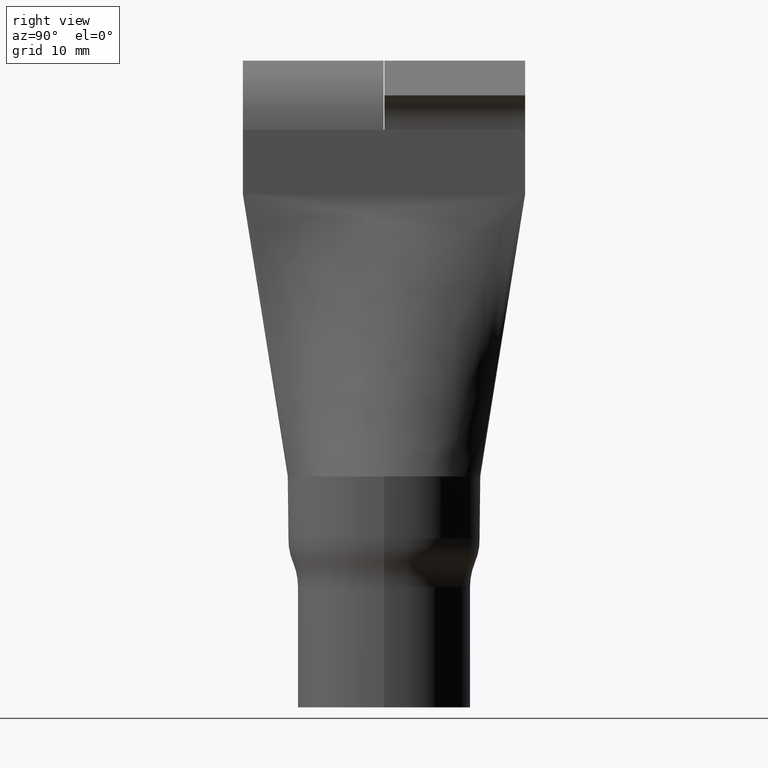
[diagram: clean part render]
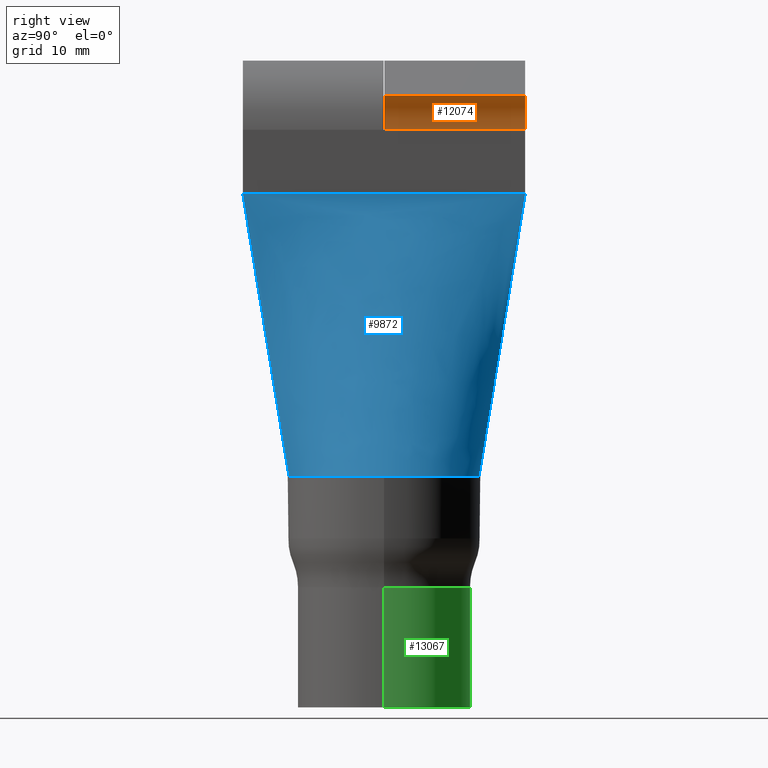
[diagram: same view with three faces highlighted in distinct colors, each labeled with its STEP entity id]
A machine part, right view with three faces highlighted in distinct colors.
Their STEP definitions:

[orange] entity #12074 — the highlighted cylindrical surface (partial cylindrical patch) has radius 6.9262 mm, axis along (-0, -1, -0).
#241 = AXIS2_PLACEMENT_3D ( 'NONE', #4854, #8548, #1378 ) ;
#254 = DIRECTION ( 'NONE',  ( -0.0000000000000000000, -1.000000000000000000, -0.0000000000000000000 ) ) ;
#303 = CARTESIAN_POINT ( 'NONE',  ( 10.42623355428751500, 22.00000000000000400, 90.00000000000000000 ) ) ;
#380 = AXIS2_PLACEMENT_3D ( 'NONE', #7104, #12976, #10600 ) ;
#1378 = DIRECTION ( 'NONE',  ( 0.0000000000000000000, 0.0000000000000000000, -1.000000000000000000 ) ) ;
#1719 = EDGE_CURVE ( 'NONE', #6644, #5269, #14447, .T. ) ;
#2174 = CARTESIAN_POINT ( 'NONE',  ( 6.037431940252191400, 0.05000000000000000300, 95.35827692837718000 ) ) ;
#2224 = AXIS2_PLACEMENT_3D ( 'NONE', #303, #254, #2721 ) ;
#2597 = VECTOR ( 'NONE', #15666, 1000.000000000000000 ) ;
#2721 = DIRECTION ( 'NONE',  ( 0.0000000000000000000, 0.0000000000000000000, -1.000000000000000000 ) ) ;
#2958 = VERTEX_POINT ( 'NONE', #3656 ) ;
#3656 = CARTESIAN_POINT ( 'NONE',  ( 6.037431940252191400, 22.00000000000000400, 95.35827692837718000 ) ) ;
#4854 = CARTESIAN_POINT ( 'NONE',  ( 10.42623355428751500, 0.04999999999999969700, 90.00000000000000000 ) ) ;
#5247 = CYLINDRICAL_SURFACE ( 'NONE', #380, 6.926233554287522400 ) ;
#5269 = VERTEX_POINT ( 'NONE', #6466 ) ;
#6466 = CARTESIAN_POINT ( 'NONE',  ( 3.500000000000000000, 0.05000000000000000300, 90.00000000000000000 ) ) ;
#6644 = VERTEX_POINT ( 'NONE', #2174 ) ;
#6734 = EDGE_LOOP ( 'NONE', ( #10125, #15003, #8685, #9099 ) ) ;
#7104 = CARTESIAN_POINT ( 'NONE',  ( 10.42623355428751500, 11.00000000000000200, 90.00000000000000000 ) ) ;
#7372 = DIRECTION ( 'NONE',  ( -9.856383386231860100E-017, -1.000000000000000000, 0.0000000000000000000 ) ) ;
#8548 = DIRECTION ( 'NONE',  ( -0.0000000000000000000, -1.000000000000000000, -0.0000000000000000000 ) ) ;
#8685 = ORIENTED_EDGE ( 'NONE', *, *, #1719, .T. ) ;
#8728 = CARTESIAN_POINT ( 'NONE',  ( 3.500000000000002200, 22.00000000000000400, 90.00000000000000000 ) ) ;
#9099 = ORIENTED_EDGE ( 'NONE', *, *, #12677, .F. ) ;
#9793 = LINE ( 'NONE', #14533, #2597 ) ;
#9985 = CIRCLE ( 'NONE', #2224, 6.926233554287522400 ) ;
#10125 = ORIENTED_EDGE ( 'NONE', *, *, #13723, .F. ) ;
#10600 = DIRECTION ( 'NONE',  ( 0.0000000000000000000, 0.0000000000000000000, -1.000000000000000000 ) ) ;
#10900 = CARTESIAN_POINT ( 'NONE',  ( 3.500000000000002200, 22.00000000000000400, 90.00000000000000000 ) ) ;
#12074 = ADVANCED_FACE ( 'NONE', ( #15463 ), #5247, .F. ) ;
#12677 = EDGE_CURVE ( 'NONE', #14401, #5269, #13606, .T. ) ;
#12976 = DIRECTION ( 'NONE',  ( -0.0000000000000000000, -1.000000000000000000, -0.0000000000000000000 ) ) ;
#13402 = VECTOR ( 'NONE', #7372, 1000.000000000000000 ) ;
#13606 = LINE ( 'NONE', #10900, #13402 ) ;
#13723 = EDGE_CURVE ( 'NONE', #2958, #14401, #9985, .T. ) ;
#14127 = EDGE_CURVE ( 'NONE', #6644, #2958, #9793, .T. ) ;
#14401 = VERTEX_POINT ( 'NONE', #8728 ) ;
#14447 = CIRCLE ( 'NONE', #241, 6.926233554287522400 ) ;
#14533 = CARTESIAN_POINT ( 'NONE',  ( 6.037431940252191400, -3.449734185181151600E-016, 95.35827692837718000 ) ) ;
#15003 = ORIENTED_EDGE ( 'NONE', *, *, #14127, .F. ) ;
#15463 = FACE_OUTER_BOUND ( 'NONE', #6734, .T. ) ;
#15666 = DIRECTION ( 'NONE',  ( 6.245488399285587600E-017, 1.000000000000000000, -7.625101186920512300E-017 ) ) ;

[blue] entity #9872 — the highlighted face is a freeform B-spline surface patch.
#9 = CARTESIAN_POINT ( 'NONE',  ( 3.452374059847578700, -14.68663407369927400, 80.50315780212317000 ) ) ;
#62 = CARTESIAN_POINT ( 'NONE',  ( 3.436598154235523100, -12.84291545996839000, 80.50315780212317000 ) ) ;
#319 = CARTESIAN_POINT ( 'NONE',  ( 3.393944052543095900, -7.326605744522327200, 80.50315780212317000 ) ) ;
#368 = CARTESIAN_POINT ( 'NONE',  ( 3.460345671636579900, -15.60938652023281400, 80.50315780212317000 ) ) ;
#423 = CARTESIAN_POINT ( 'NONE',  ( 14.54924469928874900, -4.200948314832973400, 35.55999999999998100 ) ) ;
#473 = CARTESIAN_POINT ( 'NONE',  ( 9.044346528793381500, 11.99539825577968900, 36.00000000000000700 ) ) ;
#507 = DIRECTION ( 'NONE',  ( 1.000000000000000000, 0.0000000000000000000, 0.0000000000000000000 ) ) ;
#532 = CARTESIAN_POINT ( 'NONE',  ( 9.099789994081316300, 11.98701890500415200, 35.56000000000000200 ) ) ;
#579 = CARTESIAN_POINT ( 'NONE',  ( 3.413891684207535500, 10.08193523136288600, 80.50315780212317000 ) ) ;
#629 = CARTESIAN_POINT ( 'NONE',  ( 3.388194115669525400, 6.409379246692124900, 80.50315780212317000 ) ) ;
#676 = CARTESIAN_POINT ( 'NONE',  ( 3.498829591700968900, 20.23058550342280200, 80.50315780212317000 ) ) ;
#960 = CARTESIAN_POINT ( 'NONE',  ( 2.356725731026973600, -14.81370459502670700, 36.00000000000000700 ) ) ;
#1104 = ORIENTED_EDGE ( 'NONE', *, *, #4358, .F. ) ;
#1242 = CARTESIAN_POINT ( 'NONE',  ( 9.044346528793378000, -11.99539825577968900, 36.00000000000000700 ) ) ;
#1293 = CARTESIAN_POINT ( 'NONE',  ( 3.506103103797866700, -21.15613804961288500, 80.50315780212318400 ) ) ;
#1306 = ORIENTED_EDGE ( 'NONE', *, *, #2094, .T. ) ;
#1311 = DIRECTION ( 'NONE',  ( -0.02563530597302266300, -0.1611362089732852600, -0.9865991857108880000 ) ) ;
#1553 = CARTESIAN_POINT ( 'NONE',  ( 15.00000000000000000, -1.066856216474177300, 36.00000000000000700 ) ) ;
#1606 = CARTESIAN_POINT ( 'NONE',  ( 3.499999999999999100, -12.83333333333330400, 79.99999999999998600 ) ) ;
#1660 = CARTESIAN_POINT ( 'NONE',  ( 3.406795068986805800, -9.162884368691500500, 80.50315780212317000 ) ) ;
#1706 = CARTESIAN_POINT ( 'NONE',  ( 3.452374059847581400, 14.68663407369933100, 80.50315780212317000 ) ) ;
#1751 = CARTESIAN_POINT ( 'NONE',  ( 9.726758827173377100, 11.45446083864483300, 36.00000000000000700 ) ) ;
#1770 = B_SPLINE_SURFACE_WITH_KNOTS ( 'NONE', 3, 1, ( 
 ( #9503, #3465, #10761, #2182 ),
 ( #4768, #2241, #13315, #10658 ),
 ( #15446, #14466, #7227, #14360 ),
 ( #2402, #960, #10867, #3411 ),
 ( #11862, #15500, #4043, #1293 ),
 ( #12549, #6425, #11238, #3987 ),
 ( #12496, #11292, #8921, #13416 ),
 ( #5185, #14632, #2788, #12444 ),
 ( #14889, #7607, #2461, #368 ),
 ( #4876, #10028, #13363, #9 ),
 ( #2837, #1242, #1606, #62 ),
 ( #8563, #11341, #7656, #13685 ),
 ( #10921, #9716, #6096, #5234 ),
 ( #3674, #14574, #9772, #1660 ),
 ( #7335, #8875, #2516, #319 ),
 ( #10083, #8513, #13739, #2885 ),
 ( #5285, #6477, #14939, #7709 ),
 ( #423, #10133, #4095, #6150 ),
 ( #6039, #8821, #14519, #7283 ),
 ( #12124, #1553, #10972, #3725 ),
 ( #12181, #4928, #3143, #1803 ),
 ( #8975, #9126, #7818, #10279 ),
 ( #2987, #7871, #11593, #13884 ),
 ( #6570, #1905, #5390, #7769 ),
 ( #12756, #5495, #5342, #629 ),
 ( #6523, #9023, #10232, #1856 ),
 ( #10330, #3039, #6717, #4338 ),
 ( #3090, #12661, #15037, #579 ),
 ( #15184, #1751, #6622, #7969 ),
 ( #532, #473, #15087, #2938 ),
 ( #14987, #11395, #9078, #1706 ),
 ( #13935, #13784, #10179, #11445 ),
 ( #11549, #15136, #4293, #11500 ),
 ( #4192, #4246, #12708, #5438 ),
 ( #7916, #13992, #6670, #676 ),
 ( #9178, #10382, #12807, #4140 ),
 ( #12604, #13837, #5548, #4495 ),
 ( #12972, #5699, #2006, #9379 ),
 ( #5596, #14039, #4442, #14191 ),
 ( #11694, #8228, #11796, #10438 ) ),
 .UNSPECIFIED., .F., .F., .F.,
 ( 4, 3, 2, 2, 2, 2, 2, 2, 2, 2, 2, 2, 2, 2, 2, 2, 2, 3, 4 ),
 ( 2, 1, 1, 2 ),
 ( -0.01000000000000000000, 0.0000000000000000000, 0.06250000000000004200, 0.1250000000000000800, 0.1875000000000001100, 0.2500000000000001100, 0.3125000000000001100, 0.3750000000000000600, 0.4375000000000001100, 0.5000000000000001100, 0.5625000000000001100, 0.6250000000000002200, 0.6875000000000002200, 0.7500000000000002200, 0.8125000000000003300, 0.8750000000000002200, 0.9375000000000002200, 1.000000000000000000, 1.010000000000000000 ),
 ( -0.01000000000000000000, 0.0000000000000000000, 1.000000000000000000, 1.011435404593708600 ),
 .UNSPECIFIED. ) ;
#1803 = CARTESIAN_POINT ( 'NONE',  ( 3.368492847172351200, 0.9149491883989032700, 80.50315780212317000 ) ) ;
#1856 = CARTESIAN_POINT ( 'NONE',  ( 3.393944052543097700, 7.326605744522399100, 80.50315780212317000 ) ) ;
#1905 = CARTESIAN_POINT ( 'NONE',  ( 14.11014228758122100, 5.190867087550763900, 36.00000000000002100 ) ) ;
#2006 = CARTESIAN_POINT ( 'NONE',  ( 3.500000000000002200, 22.14666666666666800, 80.00000000000000000 ) ) ;
#2094 = EDGE_CURVE ( 'NONE', #10929, #2330, #2522, .T. ) ;
#2136 = VERTEX_POINT ( 'NONE', #11332 ) ;
#2182 = CARTESIAN_POINT ( 'NONE',  ( 3.516419739841399700, -22.52667746550475800, 80.50315780212318400 ) ) ;
#2241 = CARTESIAN_POINT ( 'NONE',  ( 2.161662758734781900, -14.84473734061864600, 36.00000000000000700 ) ) ;
#2330 = VERTEX_POINT ( 'NONE', #8967 ) ;
#2402 = CARTESIAN_POINT ( 'NONE',  ( 2.345292988337243300, -14.74184164097697500, 35.56000000000000200 ) ) ;
#2461 = CARTESIAN_POINT ( 'NONE',  ( 3.499999999999998700, -15.58333333333331100, 79.99999999999998600 ) ) ;
#2516 = CARTESIAN_POINT ( 'NONE',  ( 3.499999999999999600, -7.333333333333299300, 79.99999999999998600 ) ) ;
#2522 = LINE ( 'NONE', #7550, #8596 ) ;
#2780 = DIRECTION ( 'NONE',  ( -9.856383386231860100E-017, -1.000000000000000000, 0.0000000000000000000 ) ) ;
#2788 = CARTESIAN_POINT ( 'NONE',  ( 3.499999999999997800, -17.41666666666664700, 79.99999999999998600 ) ) ;
#2837 = CARTESIAN_POINT ( 'NONE',  ( 9.099789994081311000, -11.98701890500415200, 35.56000000000000200 ) ) ;
#2885 = CARTESIAN_POINT ( 'NONE',  ( 3.388194115669523700, -6.409379246692052100, 80.50315780212317000 ) ) ;
#2938 = CARTESIAN_POINT ( 'NONE',  ( 3.436598154235526200, 12.84291545996845400, 80.50315780212317000 ) ) ;
#2987 = CARTESIAN_POINT ( 'NONE',  ( 14.54924469928875300, 4.200948314832969800, 35.56000000000000200 ) ) ;
#3039 = CARTESIAN_POINT ( 'NONE',  ( 11.65055822899979500, 9.497419981439094300, 36.00000000000001400 ) ) ;
#3090 = CARTESIAN_POINT ( 'NONE',  ( 11.10527519929101600, 10.20681676399070200, 35.56000000000000200 ) ) ;
#3143 = CARTESIAN_POINT ( 'NONE',  ( 3.500000000000000400, 0.9166666666666986000, 79.99999999999998600 ) ) ;
#3411 = CARTESIAN_POINT ( 'NONE',  ( 3.513073803827281100, -22.08217819548577400, 80.50315780212318400 ) ) ;
#3465 = CARTESIAN_POINT ( 'NONE',  ( 2.064131272588686400, -14.86025371341461600, 36.00000000000000700 ) ) ;
#3525 = AXIS2_PLACEMENT_3D ( 'NONE', #6452, #11264, #507 ) ;
#3674 = CARTESIAN_POINT ( 'NONE',  ( 11.73206381128978900, -9.500727514586822400, 35.56000000000000900 ) ) ;
#3725 = CARTESIAN_POINT ( 'NONE',  ( 3.368492847172351200, -0.9149491883988386500, 80.50315780212317000 ) ) ;
#3849 = EDGE_CURVE ( 'NONE', #9145, #2136, #15019, .T. ) ;
#3987 = CARTESIAN_POINT ( 'NONE',  ( 3.498829591700964400, -20.23058550342277700, 80.50315780212318400 ) ) ;
#4043 = CARTESIAN_POINT ( 'NONE',  ( 3.499999999999997800, -21.08333333333332500, 80.00000000000000000 ) ) ;
#4095 = CARTESIAN_POINT ( 'NONE',  ( 3.500000000000000000, -3.666666666666631900, 79.99999999999998600 ) ) ;
#4140 = CARTESIAN_POINT ( 'NONE',  ( 3.506103103797870700, 21.15613804961290300, 80.50315780212317000 ) ) ;
#4192 = CARTESIAN_POINT ( 'NONE',  ( 4.929907008329300000, 14.14672940750546800, 35.56000000000000200 ) ) ;
#4246 = CARTESIAN_POINT ( 'NONE',  ( 4.915749513197326300, 14.18818093152356700, 36.00000000000000700 ) ) ;
#4293 = CARTESIAN_POINT ( 'NONE',  ( 3.500000000000003100, 17.41666666666668900, 79.99999999999998600 ) ) ;
#4338 = CARTESIAN_POINT ( 'NONE',  ( 3.406795068986807200, 9.162884368691568000, 80.50315780212317000 ) ) ;
#4358 = EDGE_CURVE ( 'NONE', #10929, #2136, #4780, .T. ) ;
#4442 = CARTESIAN_POINT ( 'NONE',  ( 3.500000000000002200, 22.29333333333333700, 80.00000000000000000 ) ) ;
#4495 = CARTESIAN_POINT ( 'NONE',  ( 3.513073803827285500, 22.08217819548578100, 80.50315780212318400 ) ) ;
#4768 = CARTESIAN_POINT ( 'NONE',  ( 2.148279386322129900, -14.77025138069150100, 35.56000000000000200 ) ) ;
#4780 = LINE ( 'NONE', #10778, #10851 ) ;
#4876 = CARTESIAN_POINT ( 'NONE',  ( 7.706427429809443700, -12.90310150920340400, 35.56000000000000200 ) ) ;
#4928 = CARTESIAN_POINT ( 'NONE',  ( 15.00000000000000000, 1.066856216474170800, 36.00000000000000000 ) ) ;
#4978 = VERTEX_POINT ( 'NONE', #5508 ) ;
#5185 = CARTESIAN_POINT ( 'NONE',  ( 5.614122450433042900, -13.90397706744653300, 35.56000000000000200 ) ) ;
#5234 = CARTESIAN_POINT ( 'NONE',  ( 3.413891684207533700, -10.08193523136282000, 80.50315780212317000 ) ) ;
#5285 = CARTESIAN_POINT ( 'NONE',  ( 14.21624371045702500, -5.196942425092945700, 35.56000000000001600 ) ) ;
#5342 = CARTESIAN_POINT ( 'NONE',  ( 3.500000000000001300, 6.416666666666704300, 79.99999999999998600 ) ) ;
#5390 = CARTESIAN_POINT ( 'NONE',  ( 3.500000000000000900, 4.583333333333370300, 79.99999999999998600 ) ) ;
#5438 = CARTESIAN_POINT ( 'NONE',  ( 3.483810331513245400, 18.38073482815062900, 80.50315780212317000 ) ) ;
#5495 = CARTESIAN_POINT ( 'NONE',  ( 13.27716909045683700, 7.053934890529027300, 36.00000000000002100 ) ) ;
#5508 = CARTESIAN_POINT ( 'NONE',  ( 2.356730390204889500, -14.81373377979495000, 36.00000000000000700 ) ) ;
#5548 = CARTESIAN_POINT ( 'NONE',  ( 3.500000000000002200, 22.00000000000000400, 80.00000000000000000 ) ) ;
#5596 = CARTESIAN_POINT ( 'NONE',  ( 2.148279386322141400, 14.77025138069149800, 35.56000000000000200 ) ) ;
#5652 = FACE_OUTER_BOUND ( 'NONE', #9670, .T. ) ;
#5699 = CARTESIAN_POINT ( 'NONE',  ( 2.259194244880888400, 14.82922096782267300, 36.00000000000000700 ) ) ;
#5842 = CARTESIAN_POINT ( 'NONE',  ( 15.00000000000000000, -3.578717451395269700E-015, 36.00000000000000700 ) ) ;
#6010 = DIRECTION ( 'NONE',  ( 1.000000000000000000, 0.0000000000000000000, 0.0000000000000000000 ) ) ;
#6039 = CARTESIAN_POINT ( 'NONE',  ( 14.99877902806598900, -2.136443294404580100, 35.55999999999999500 ) ) ;
#6096 = CARTESIAN_POINT ( 'NONE',  ( 3.499999999999999600, -10.08333333333330200, 79.99999999999998600 ) ) ;
#6150 = CARTESIAN_POINT ( 'NONE',  ( 3.374898432087864100, -3.660617432197546900, 80.50315780212317000 ) ) ;
#6425 = CARTESIAN_POINT ( 'NONE',  ( 3.602349531181198400, -14.57711045706065700, 36.00000000000000700 ) ) ;
#6452 = CARTESIAN_POINT ( 'NONE',  ( 0.0000000000000000000, 0.0000000000000000000, 36.00000000000000700 ) ) ;
#6477 = CARTESIAN_POINT ( 'NONE',  ( 14.11014228758121400, -5.190867087550770100, 36.00000000000002100 ) ) ;
#6523 = CARTESIAN_POINT ( 'NONE',  ( 12.86709375288781100, 7.927528723920553400, 35.56000000000000900 ) ) ;
#6570 = CARTESIAN_POINT ( 'NONE',  ( 14.21624371045703200, 5.196942425092937700, 35.56000000000001600 ) ) ;
#6622 = CARTESIAN_POINT ( 'NONE',  ( 3.500000000000002200, 11.91666666666670000, 79.99999999999998600 ) ) ;
#6670 = CARTESIAN_POINT ( 'NONE',  ( 3.500000000000002200, 20.16666666666667900, 79.99999999999998600 ) ) ;
#6717 = CARTESIAN_POINT ( 'NONE',  ( 3.500000000000001300, 9.166666666666701600, 79.99999999999998600 ) ) ;
#7227 = CARTESIAN_POINT ( 'NONE',  ( 3.499999999999997800, -22.14666666666666100, 80.00000000000000000 ) ) ;
#7283 = CARTESIAN_POINT ( 'NONE',  ( 3.369808722257836100, -1.829901466955840900, 80.50315780212317000 ) ) ;
#7335 = CARTESIAN_POINT ( 'NONE',  ( 12.86709375288781000, -7.927528723920565800, 35.56000000000000900 ) ) ;
#7550 = CARTESIAN_POINT ( 'NONE',  ( 3.500000000000002200, 22.00000000000000400, 80.00000000000000000 ) ) ;
#7607 = CARTESIAN_POINT ( 'NONE',  ( 6.967680398928392200, -13.30504167465099200, 36.00000000000001400 ) ) ;
#7656 = CARTESIAN_POINT ( 'NONE',  ( 3.499999999999999100, -11.91666666666663600, 79.99999999999998600 ) ) ;
#7709 = CARTESIAN_POINT ( 'NONE',  ( 3.378668730144691200, -4.576385939049488100, 80.50315780212317000 ) ) ;
#7769 = CARTESIAN_POINT ( 'NONE',  ( 3.378668730144692500, 4.576385939049560000, 80.50315780212317000 ) ) ;
#7818 = CARTESIAN_POINT ( 'NONE',  ( 3.500000000000000400, 1.833333333333366600, 79.99999999999998600 ) ) ;
#7871 = CARTESIAN_POINT ( 'NONE',  ( 14.43984623691955700, 4.195658397524393700, 36.00000000000000700 ) ) ;
#7916 = CARTESIAN_POINT ( 'NONE',  ( 3.603373026493014800, 14.52121489496459500, 35.56000000000000200 ) ) ;
#7969 = CARTESIAN_POINT ( 'NONE',  ( 3.428794493503828400, 11.92195217731569900, 80.50315780212317000 ) ) ;
#8228 = CARTESIAN_POINT ( 'NONE',  ( 2.064131272588698000, 14.86025371341461300, 36.00000000000000700 ) ) ;
#8418 = EDGE_CURVE ( 'NONE', #4978, #9145, #8905, .T. ) ;
#8513 = CARTESIAN_POINT ( 'NONE',  ( 13.27716909045684100, -7.053934890529036200, 36.00000000000001400 ) ) ;
#8563 = CARTESIAN_POINT ( 'NONE',  ( 9.789026415445105700, -11.44983878036461500, 35.56000000000000200 ) ) ;
#8596 = VECTOR ( 'NONE', #2780, 1000.000000000000000 ) ;
#8619 = CARTESIAN_POINT ( 'NONE',  ( 3.500000000000002200, 22.00000000000000400, 79.99999999999998600 ) ) ;
#8821 = CARTESIAN_POINT ( 'NONE',  ( 14.88492973075840500, -2.133442205681102000, 36.00000000000000000 ) ) ;
#8875 = CARTESIAN_POINT ( 'NONE',  ( 12.77435025038397000, -7.921645601241483100, 36.00000000000001400 ) ) ;
#8905 = CIRCLE ( 'NONE', #11265, 15.00000000000000000 ) ;
#8921 = CARTESIAN_POINT ( 'NONE',  ( 3.499999999999997800, -18.33333333333331400, 79.99999999999998600 ) ) ;
#8967 = CARTESIAN_POINT ( 'NONE',  ( 3.499999999999997800, -21.99999999999999600, 80.00000000000000000 ) ) ;
#8975 = CARTESIAN_POINT ( 'NONE',  ( 14.99877902806598600, 2.136443294404573000, 35.56000000000000200 ) ) ;
#9023 = CARTESIAN_POINT ( 'NONE',  ( 12.77435025038397100, 7.921645601241473300, 36.00000000000001400 ) ) ;
#9036 = ORIENTED_EDGE ( 'NONE', *, *, #3849, .T. ) ;
#9078 = CARTESIAN_POINT ( 'NONE',  ( 3.500000000000002200, 14.66666666666669600, 79.99999999999998600 ) ) ;
#9126 = CARTESIAN_POINT ( 'NONE',  ( 14.88492973075840100, 2.133442205681096200, 36.00000000000000700 ) ) ;
#9145 = VERTEX_POINT ( 'NONE', #5842 ) ;
#9178 = CARTESIAN_POINT ( 'NONE',  ( 2.960960494634479200, 14.65306120436908300, 35.56000000000001600 ) ) ;
#9379 = CARTESIAN_POINT ( 'NONE',  ( 3.514189115831991600, 22.23034461882544100, 80.50315780212318400 ) ) ;
#9503 = CARTESIAN_POINT ( 'NONE',  ( 2.049772585314573200, -14.78445625054876400, 35.56000000000000200 ) ) ;
#9523 = CARTESIAN_POINT ( 'NONE',  ( 0.0000000000000000000, 0.0000000000000000000, 36.00000000000000700 ) ) ;
#9670 = EDGE_LOOP ( 'NONE', ( #15586, #9036, #1104, #1306, #13948 ) ) ;
#9716 = CARTESIAN_POINT ( 'NONE',  ( 11.02997544484258800, -10.20559415576637400, 36.00000000000000700 ) ) ;
#9772 = CARTESIAN_POINT ( 'NONE',  ( 3.499999999999999600, -9.166666666666634100, 79.99999999999998600 ) ) ;
#9872 = ADVANCED_FACE ( 'NONE', ( #5652 ), #1770, .T. ) ;
#10028 = CARTESIAN_POINT ( 'NONE',  ( 7.664779633474696000, -12.92056255036640500, 36.00000000000000700 ) ) ;
#10083 = CARTESIAN_POINT ( 'NONE',  ( 13.37494078136140800, -7.060307572767660700, 35.56000000000000900 ) ) ;
#10133 = CARTESIAN_POINT ( 'NONE',  ( 14.43984623691955500, -4.195658397524395500, 35.99999999999998600 ) ) ;
#10179 = CARTESIAN_POINT ( 'NONE',  ( 3.500000000000002700, 15.58333333333335900, 79.99999999999998600 ) ) ;
#10232 = CARTESIAN_POINT ( 'NONE',  ( 3.500000000000001300, 7.333333333333370300, 79.99999999999998600 ) ) ;
#10279 = CARTESIAN_POINT ( 'NONE',  ( 3.369808722257836100, 1.829901466955908600, 80.50315780212317000 ) ) ;
#10330 = CARTESIAN_POINT ( 'NONE',  ( 11.73206381128979300, 9.500727514586818900, 35.56000000000000900 ) ) ;
#10382 = CARTESIAN_POINT ( 'NONE',  ( 2.966297519440078500, 14.71672726505189700, 36.00000000000002100 ) ) ;
#10438 = CARTESIAN_POINT ( 'NONE',  ( 3.516419739841404100, 22.52667746550476500, 80.50315780212318400 ) ) ;
#10658 = CARTESIAN_POINT ( 'NONE',  ( 3.515304427836693600, -22.37851104216509800, 80.50315780212318400 ) ) ;
#10761 = CARTESIAN_POINT ( 'NONE',  ( 3.499999999999997800, -22.43999999999999400, 80.00000000000000000 ) ) ;
#10778 = CARTESIAN_POINT ( 'NONE',  ( 2.928362865513489700, 18.40685229751335700, 58.00000000000000000 ) ) ;
#10832 = DIRECTION ( 'NONE',  ( 0.0000000000000000000, 0.0000000000000000000, 1.000000000000000000 ) ) ;
#10851 = VECTOR ( 'NONE', #1311, 1000.000000000000000 ) ;
#10867 = CARTESIAN_POINT ( 'NONE',  ( 3.499999999999997800, -21.99999999999999600, 80.00000000000000000 ) ) ;
#10876 = CARTESIAN_POINT ( 'NONE',  ( 2.928362865513485700, -18.40685229751335300, 58.00000000000000000 ) ) ;
#10921 = CARTESIAN_POINT ( 'NONE',  ( 11.10527519929101500, -10.20681676399070500, 35.56000000000000200 ) ) ;
#10929 = VERTEX_POINT ( 'NONE', #8619 ) ;
#10930 = DIRECTION ( 'NONE',  ( 0.02563530597302264900, -0.1611362089732850700, 0.9865991857108880000 ) ) ;
#10972 = CARTESIAN_POINT ( 'NONE',  ( 3.500000000000000400, -0.9166666666666347700, 79.99999999999998600 ) ) ;
#11238 = CARTESIAN_POINT ( 'NONE',  ( 3.499999999999997800, -20.16666666666665700, 80.00000000000000000 ) ) ;
#11264 = DIRECTION ( 'NONE',  ( 0.0000000000000000000, 0.0000000000000000000, 1.000000000000000000 ) ) ;
#11265 = AXIS2_PLACEMENT_3D ( 'NONE', #9523, #10832, #6010 ) ;
#11292 = CARTESIAN_POINT ( 'NONE',  ( 4.915749513197322800, -14.18818093152356700, 36.00000000000000700 ) ) ;
#11332 = CARTESIAN_POINT ( 'NONE',  ( 2.356732032253578500, 14.81374406239035000, 36.00000000000000700 ) ) ;
#11341 = CARTESIAN_POINT ( 'NONE',  ( 9.726758827173373600, -11.45446083864483500, 36.00000000000000700 ) ) ;
#11395 = CARTESIAN_POINT ( 'NONE',  ( 7.664779633474696900, 12.92056255036640000, 36.00000000000001400 ) ) ;
#11445 = CARTESIAN_POINT ( 'NONE',  ( 3.460345671636583500, 15.60938652023286400, 80.50315780212317000 ) ) ;
#11500 = CARTESIAN_POINT ( 'NONE',  ( 3.476063519226394700, 17.45643798030945200, 80.50315780212317000 ) ) ;
#11549 = CARTESIAN_POINT ( 'NONE',  ( 5.614122450433047400, 13.90397706744652600, 35.56000000000001600 ) ) ;
#11593 = CARTESIAN_POINT ( 'NONE',  ( 3.500000000000000400, 3.666666666666702500, 79.99999999999998600 ) ) ;
#11694 = CARTESIAN_POINT ( 'NONE',  ( 2.049772585314585200, 14.78445625054876100, 35.56000000000000200 ) ) ;
#11796 = CARTESIAN_POINT ( 'NONE',  ( 3.500000000000002200, 22.44000000000000100, 80.00000000000000000 ) ) ;
#11862 = CARTESIAN_POINT ( 'NONE',  ( 2.960960494634472500, -14.65306120436907900, 35.56000000000000200 ) ) ;
#12124 = CARTESIAN_POINT ( 'NONE',  ( 15.11500000000000000, -1.068358111972252500, 35.56000000000000200 ) ) ;
#12181 = CARTESIAN_POINT ( 'NONE',  ( 15.11500000000000000, 1.068358111972245400, 35.55999999999999500 ) ) ;
#12444 = CARTESIAN_POINT ( 'NONE',  ( 3.476063519226389300, -17.45643798030941300, 80.50315780212317000 ) ) ;
#12496 = CARTESIAN_POINT ( 'NONE',  ( 4.929907008329296400, -14.14672940750546800, 35.56000000000000200 ) ) ;
#12549 = CARTESIAN_POINT ( 'NONE',  ( 3.603373026493010400, -14.52121489496459900, 35.56000000000000200 ) ) ;
#12604 = CARTESIAN_POINT ( 'NONE',  ( 2.345292988337253500, 14.74184164097697200, 35.56000000000000200 ) ) ;
#12661 = CARTESIAN_POINT ( 'NONE',  ( 11.02997544484259200, 10.20559415576637000, 36.00000000000000700 ) ) ;
#12708 = CARTESIAN_POINT ( 'NONE',  ( 3.500000000000002700, 18.33333333333335300, 79.99999999999998600 ) ) ;
#12756 = CARTESIAN_POINT ( 'NONE',  ( 13.37494078136140500, 7.060307572767651000, 35.56000000000001600 ) ) ;
#12807 = CARTESIAN_POINT ( 'NONE',  ( 3.500000000000002200, 21.08333333333334300, 79.99999999999998600 ) ) ;
#12972 = CARTESIAN_POINT ( 'NONE',  ( 2.246786187329697700, 14.75604651083423500, 35.56000000000000200 ) ) ;
#12996 = VECTOR ( 'NONE', #10930, 1000.000000000000200 ) ;
#13315 = CARTESIAN_POINT ( 'NONE',  ( 3.499999999999997800, -22.29333333333332900, 80.00000000000000000 ) ) ;
#13363 = CARTESIAN_POINT ( 'NONE',  ( 3.499999999999999100, -14.66666666666664300, 79.99999999999998600 ) ) ;
#13416 = CARTESIAN_POINT ( 'NONE',  ( 3.483810331513240500, -18.38073482815059400, 80.50315780212317000 ) ) ;
#13685 = CARTESIAN_POINT ( 'NONE',  ( 3.428794493503825300, -11.92195217731563500, 80.50315780212317000 ) ) ;
#13739 = CARTESIAN_POINT ( 'NONE',  ( 3.499999999999999600, -6.416666666666633200, 79.99999999999998600 ) ) ;
#13784 = CARTESIAN_POINT ( 'NONE',  ( 6.967680398928391300, 13.30504167465098700, 36.00000000000000000 ) ) ;
#13837 = CARTESIAN_POINT ( 'NONE',  ( 2.356725731026983800, 14.81370459502670300, 36.00000000000000700 ) ) ;
#13884 = CARTESIAN_POINT ( 'NONE',  ( 3.374898432087864600, 3.660617432197618400, 80.50315780212317000 ) ) ;
#13935 = CARTESIAN_POINT ( 'NONE',  ( 7.002357202917675500, 13.28225875806416100, 35.55999999999999500 ) ) ;
#13948 = ORIENTED_EDGE ( 'NONE', *, *, #14110, .F. ) ;
#13992 = CARTESIAN_POINT ( 'NONE',  ( 3.602349531181202800, 14.57711045706065500, 36.00000000000000700 ) ) ;
#14039 = CARTESIAN_POINT ( 'NONE',  ( 2.161662758734793400, 14.84473734061864300, 36.00000000000000700 ) ) ;
#14110 = EDGE_CURVE ( 'NONE', #4978, #2330, #14327, .T. ) ;
#14191 = CARTESIAN_POINT ( 'NONE',  ( 3.515304427836698100, 22.37851104216510500, 80.50315780212318400 ) ) ;
#14327 = LINE ( 'NONE', #10876, #12996 ) ;
#14360 = CARTESIAN_POINT ( 'NONE',  ( 3.514189115831987100, -22.23034461882543400, 80.50315780212318400 ) ) ;
#14466 = CARTESIAN_POINT ( 'NONE',  ( 2.259194244880877700, -14.82922096782267700, 36.00000000000000700 ) ) ;
#14519 = CARTESIAN_POINT ( 'NONE',  ( 3.500000000000000400, -1.833333333333299700, 79.99999999999998600 ) ) ;
#14574 = CARTESIAN_POINT ( 'NONE',  ( 11.65055822899979200, -9.497419981439097800, 36.00000000000001400 ) ) ;
#14632 = CARTESIAN_POINT ( 'NONE',  ( 5.593190544983211300, -13.93875617238930600, 36.00000000000000700 ) ) ;
#14889 = CARTESIAN_POINT ( 'NONE',  ( 7.002357202917676400, -13.28225875806416800, 35.56000000000000900 ) ) ;
#14939 = CARTESIAN_POINT ( 'NONE',  ( 3.499999999999999600, -4.583333333333299300, 79.99999999999998600 ) ) ;
#14987 = CARTESIAN_POINT ( 'NONE',  ( 7.706427429809444600, 12.90310150920339700, 35.56000000000000900 ) ) ;
#15019 = CIRCLE ( 'NONE', #3525, 15.00000000000000000 ) ;
#15037 = CARTESIAN_POINT ( 'NONE',  ( 3.500000000000001300, 10.08333333333336600, 79.99999999999998600 ) ) ;
#15087 = CARTESIAN_POINT ( 'NONE',  ( 3.500000000000002200, 12.83333333333336600, 79.99999999999998600 ) ) ;
#15136 = CARTESIAN_POINT ( 'NONE',  ( 5.593190544983214900, 13.93875617238929900, 36.00000000000002100 ) ) ;
#15184 = CARTESIAN_POINT ( 'NONE',  ( 9.789026415445109200, 11.44983878036461400, 35.56000000000000200 ) ) ;
#15446 = CARTESIAN_POINT ( 'NONE',  ( 2.246786187329686600, -14.75604651083423800, 35.56000000000000200 ) ) ;
#15500 = CARTESIAN_POINT ( 'NONE',  ( 2.966297519440071800, -14.71672726505189400, 36.00000000000000700 ) ) ;
#15586 = ORIENTED_EDGE ( 'NONE', *, *, #8418, .T. ) ;

[green] entity #13067 — the highlighted cylindrical surface (partial cylindrical patch) has radius 13.5 mm, axis along (-0, -0, -1).
#430 = ORIENTED_EDGE ( 'NONE', *, *, #10237, .T. ) ;
#585 = DIRECTION ( 'NONE',  ( -0.0000000000000000000, -0.0000000000000000000, -1.000000000000000000 ) ) ;
#710 = ORIENTED_EDGE ( 'NONE', *, *, #11987, .T. ) ;
#1146 = DIRECTION ( 'NONE',  ( -0.0000000000000000000, -0.0000000000000000000, -1.000000000000000000 ) ) ;
#2776 = DIRECTION ( 'NONE',  ( -0.0000000000000000000, -0.0000000000000000000, -1.000000000000000000 ) ) ;
#2807 = CARTESIAN_POINT ( 'NONE',  ( -13.50000000000000000, 0.0000000000000000000, 18.73217312357362700 ) ) ;
#2811 = FACE_OUTER_BOUND ( 'NONE', #5819, .T. ) ;
#3371 = VECTOR ( 'NONE', #585, 1000.000000000000000 ) ;
#3557 = CYLINDRICAL_SURFACE ( 'NONE', #12040, 13.50000000000000000 ) ;
#3599 = EDGE_CURVE ( 'NONE', #10070, #4048, #12739, .T. ) ;
#4048 = VERTEX_POINT ( 'NONE', #12780 ) ;
#4202 = CARTESIAN_POINT ( 'NONE',  ( -13.50000000000000000, 0.0000000000000000000, 24.00000000000000000 ) ) ;
#5219 = CARTESIAN_POINT ( 'NONE',  ( 0.0000000000000000000, 0.0000000000000000000, 18.73217312357362700 ) ) ;
#5422 = AXIS2_PLACEMENT_3D ( 'NONE', #5219, #2776, #7693 ) ;
#5707 = CARTESIAN_POINT ( 'NONE',  ( 0.0000000000000000000, 0.0000000000000000000, 0.0000000000000000000 ) ) ;
#5819 = EDGE_LOOP ( 'NONE', ( #10033, #430, #710, #14175 ) ) ;
#6583 = LINE ( 'NONE', #4202, #3371 ) ;
#6989 = DIRECTION ( 'NONE',  ( 1.000000000000000000, 0.0000000000000000000, 0.0000000000000000000 ) ) ;
#7114 = VERTEX_POINT ( 'NONE', #13463 ) ;
#7693 = DIRECTION ( 'NONE',  ( 1.000000000000000000, 0.0000000000000000000, 0.0000000000000000000 ) ) ;
#7834 = CARTESIAN_POINT ( 'NONE',  ( 13.50000000000000000, 1.653273178848926900E-015, 24.00000000000000000 ) ) ;
#8045 = CARTESIAN_POINT ( 'NONE',  ( 0.0000000000000000000, 0.0000000000000000000, 24.00000000000000000 ) ) ;
#8232 = CARTESIAN_POINT ( 'NONE',  ( -13.50000000000000000, 0.0000000000000000000, 0.0000000000000000000 ) ) ;
#9038 = DIRECTION ( 'NONE',  ( -0.0000000000000000000, -0.0000000000000000000, -1.000000000000000000 ) ) ;
#10033 = ORIENTED_EDGE ( 'NONE', *, *, #3599, .T. ) ;
#10070 = VERTEX_POINT ( 'NONE', #2807 ) ;
#10237 = EDGE_CURVE ( 'NONE', #4048, #7114, #13826, .T. ) ;
#10795 = VECTOR ( 'NONE', #9038, 1000.000000000000000 ) ;
#11956 = EDGE_CURVE ( 'NONE', #10070, #12130, #6583, .T. ) ;
#11987 = EDGE_CURVE ( 'NONE', #7114, #12130, #14925, .T. ) ;
#12030 = DIRECTION ( 'NONE',  ( -1.000000000000000000, 0.0000000000000000000, 0.0000000000000000000 ) ) ;
#12040 = AXIS2_PLACEMENT_3D ( 'NONE', #8045, #1146, #12030 ) ;
#12130 = VERTEX_POINT ( 'NONE', #8232 ) ;
#12559 = AXIS2_PLACEMENT_3D ( 'NONE', #5707, #13089, #6989 ) ;
#12739 = CIRCLE ( 'NONE', #5422, 13.50000000000000000 ) ;
#12780 = CARTESIAN_POINT ( 'NONE',  ( 13.50000000000000000, 1.653273178848926900E-015, 18.73217312357362700 ) ) ;
#13067 = ADVANCED_FACE ( 'NONE', ( #2811 ), #3557, .T. ) ;
#13089 = DIRECTION ( 'NONE',  ( 0.0000000000000000000, 0.0000000000000000000, 1.000000000000000000 ) ) ;
#13463 = CARTESIAN_POINT ( 'NONE',  ( 13.50000000000000000, 1.653273178848926900E-015, 0.0000000000000000000 ) ) ;
#13826 = LINE ( 'NONE', #7834, #10795 ) ;
#14175 = ORIENTED_EDGE ( 'NONE', *, *, #11956, .F. ) ;
#14925 = CIRCLE ( 'NONE', #12559, 13.50000000000000000 ) ;